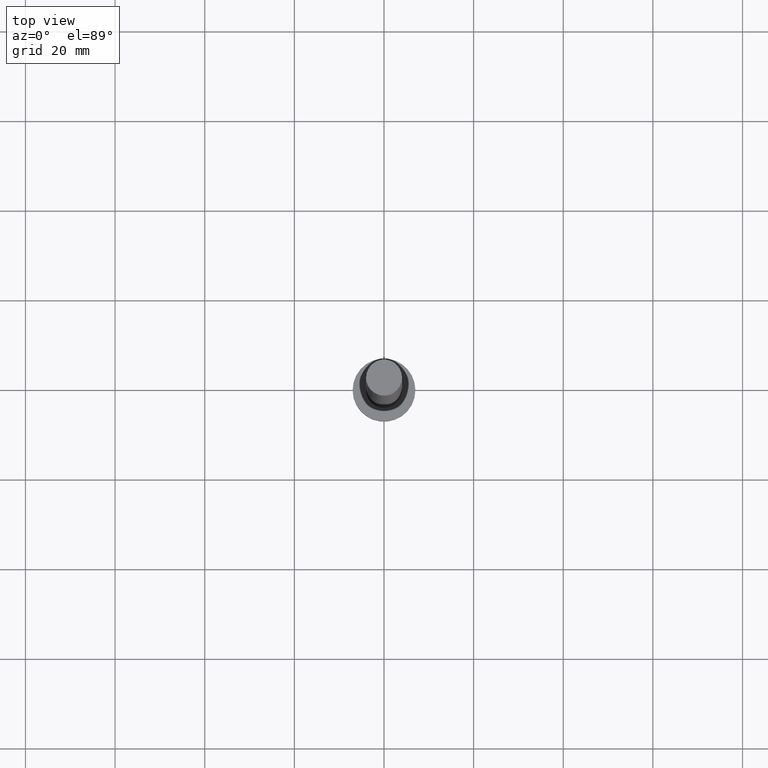
[diagram: clean part render]
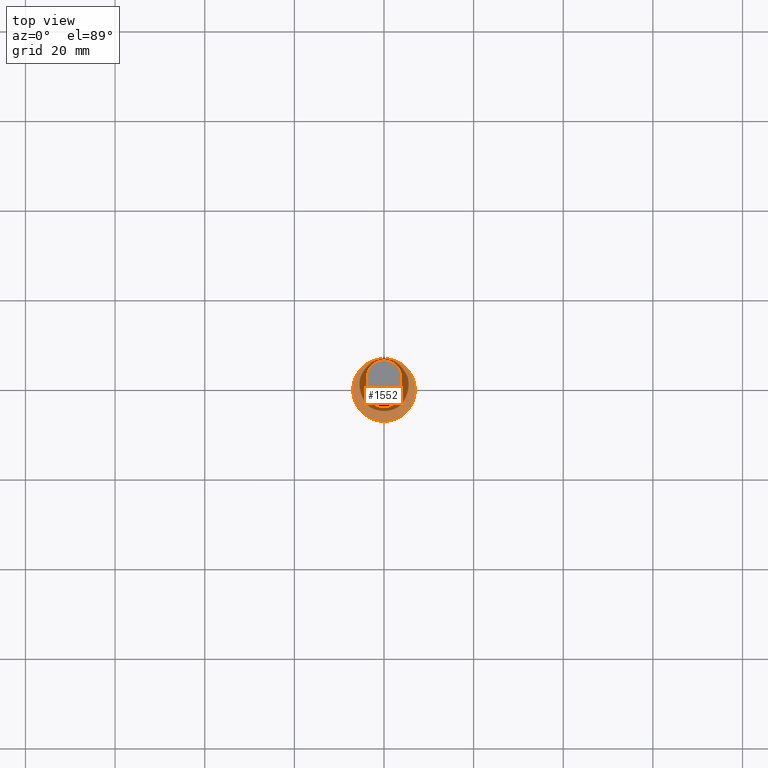
[diagram: same view with one face highlighted and labeled with its STEP entity id]
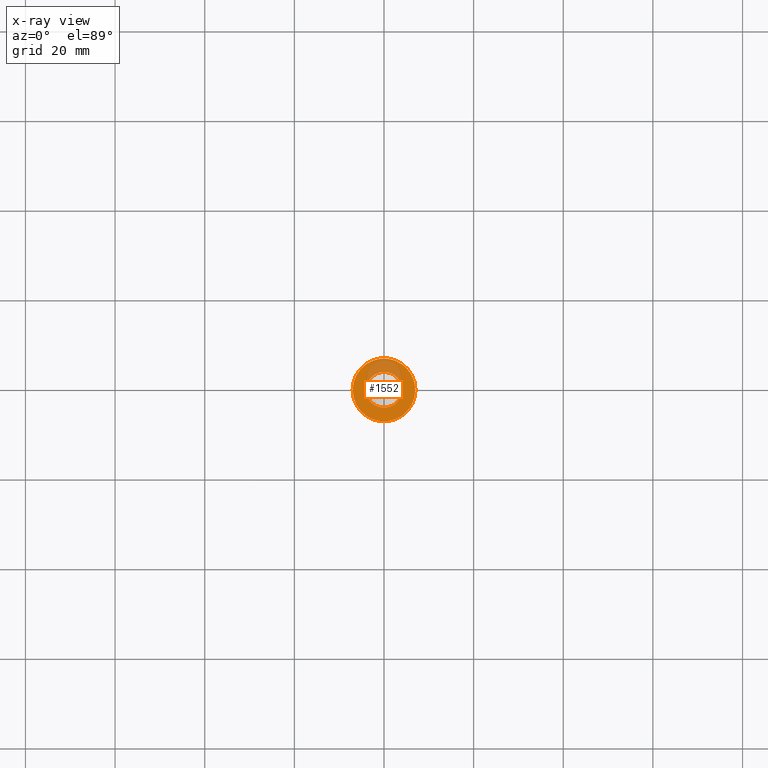
[diagram: x-ray of the same camera — body ghosted, the highlighted face saturated]
A machine part, top view. The second image highlights one B-rep face of the part: STEP entity #1552.
The next image is the same camera in x-ray: the body ghosted, the highlighted face saturated — about 21% of this face is hidden behind the body in this view.
In plain terms, the highlighted planar face has unit normal (0, 0, 1).
Its self-contained STEP definition (entity closure, byte-faithful):
#61 = PLANE ( 'NONE',  #780 ) ;
#125 = DIRECTION ( 'NONE',  ( 1.000000000000000000, 0.000000000000000000, 0.000000000000000000 ) ) ;
#141 = ORIENTED_EDGE ( 'NONE', *, *, #431, .T. ) ;
#159 = CARTESIAN_POINT ( 'NONE',  ( 0.000000000000000000, 0.000000000000000000, 5.000000000000000000 ) ) ;
#170 = ORIENTED_EDGE ( 'NONE', *, *, #1274, .F. ) ;
#176 = FACE_OUTER_BOUND ( 'NONE', #1252, .T. ) ;
#185 = DIRECTION ( 'NONE',  ( 0.000000000000000000, 0.000000000000000000, 1.000000000000000000 ) ) ;
#224 = CARTESIAN_POINT ( 'NONE',  ( 7.000000000000000000, 8.572527594031473190E-16, 5.000000000000000000 ) ) ;
#302 = CIRCLE ( 'NONE', #360, 4.000000000000000000 ) ;
#307 = EDGE_CURVE ( 'NONE', #436, #1439, #773, .T. ) ;
#318 = CARTESIAN_POINT ( 'NONE',  ( -4.000000000000000000, 0.000000000000000000, 5.000000000000000000 ) ) ;
#360 = AXIS2_PLACEMENT_3D ( 'NONE', #1009, #1387, #125 ) ;
#412 = DIRECTION ( 'NONE',  ( 1.000000000000000000, 0.000000000000000000, 0.000000000000000000 ) ) ;
#418 = CIRCLE ( 'NONE', #1490, 7.000000000000000000 ) ;
#430 = DIRECTION ( 'NONE',  ( 0.000000000000000000, 0.000000000000000000, 1.000000000000000000 ) ) ;
#431 = EDGE_CURVE ( 'NONE', #1064, #1206, #418, .T. ) ;
#436 = VERTEX_POINT ( 'NONE', #318 ) ;
#447 = AXIS2_PLACEMENT_3D ( 'NONE', #159, #185, #1200 ) ;
#455 = CARTESIAN_POINT ( 'NONE',  ( 0.000000000000000000, 0.000000000000000000, 5.000000000000000000 ) ) ;
#577 = CARTESIAN_POINT ( 'NONE',  ( 0.000000000000000000, 0.000000000000000000, 5.000000000000000000 ) ) ;
#602 = DIRECTION ( 'NONE',  ( 1.000000000000000000, 0.000000000000000000, 0.000000000000000000 ) ) ;
#623 = ORIENTED_EDGE ( 'NONE', *, *, #307, .F. ) ;
#676 = DIRECTION ( 'NONE',  ( 0.000000000000000000, 0.000000000000000000, 1.000000000000000000 ) ) ;
#715 = DIRECTION ( 'NONE',  ( 1.000000000000000000, 0.000000000000000000, -0.000000000000000000 ) ) ;
#773 = CIRCLE ( 'NONE', #1143, 4.000000000000000000 ) ;
#780 = AXIS2_PLACEMENT_3D ( 'NONE', #455, #430, #715 ) ;
#839 = FACE_BOUND ( 'NONE', #1643, .T. ) ;
#862 = CARTESIAN_POINT ( 'NONE',  ( 0.000000000000000000, 0.000000000000000000, 5.000000000000000000 ) ) ;
#944 = ORIENTED_EDGE ( 'NONE', *, *, #1505, .T. ) ;
#1009 = CARTESIAN_POINT ( 'NONE',  ( 0.000000000000000000, 0.000000000000000000, 5.000000000000000000 ) ) ;
#1064 = VERTEX_POINT ( 'NONE', #1543 ) ;
#1143 = AXIS2_PLACEMENT_3D ( 'NONE', #577, #676, #412 ) ;
#1200 = DIRECTION ( 'NONE',  ( 1.000000000000000000, 0.000000000000000000, 0.000000000000000000 ) ) ;
#1206 = VERTEX_POINT ( 'NONE', #224 ) ;
#1252 = EDGE_LOOP ( 'NONE', ( #141, #944 ) ) ;
#1274 = EDGE_CURVE ( 'NONE', #1439, #436, #302, .T. ) ;
#1295 = CARTESIAN_POINT ( 'NONE',  ( 4.000000000000000000, 4.898587196589412829E-16, 5.000000000000000000 ) ) ;
#1387 = DIRECTION ( 'NONE',  ( 0.000000000000000000, 0.000000000000000000, 1.000000000000000000 ) ) ;
#1410 = CIRCLE ( 'NONE', #447, 7.000000000000000000 ) ;
#1439 = VERTEX_POINT ( 'NONE', #1295 ) ;
#1490 = AXIS2_PLACEMENT_3D ( 'NONE', #862, #1602, #602 ) ;
#1505 = EDGE_CURVE ( 'NONE', #1206, #1064, #1410, .T. ) ;
#1543 = CARTESIAN_POINT ( 'NONE',  ( -7.000000000000000000, 0.000000000000000000, 5.000000000000000000 ) ) ;
#1552 = ADVANCED_FACE ( 'NONE', ( #839, #176 ), #61, .T. ) ;
#1602 = DIRECTION ( 'NONE',  ( 0.000000000000000000, 0.000000000000000000, 1.000000000000000000 ) ) ;
#1643 = EDGE_LOOP ( 'NONE', ( #623, #170 ) ) ;